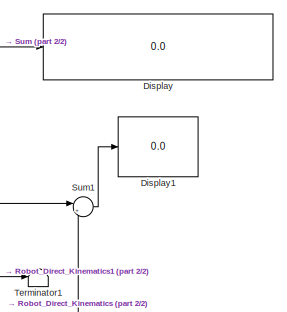
[diagram: root canvas - part 1/2, middle right region]
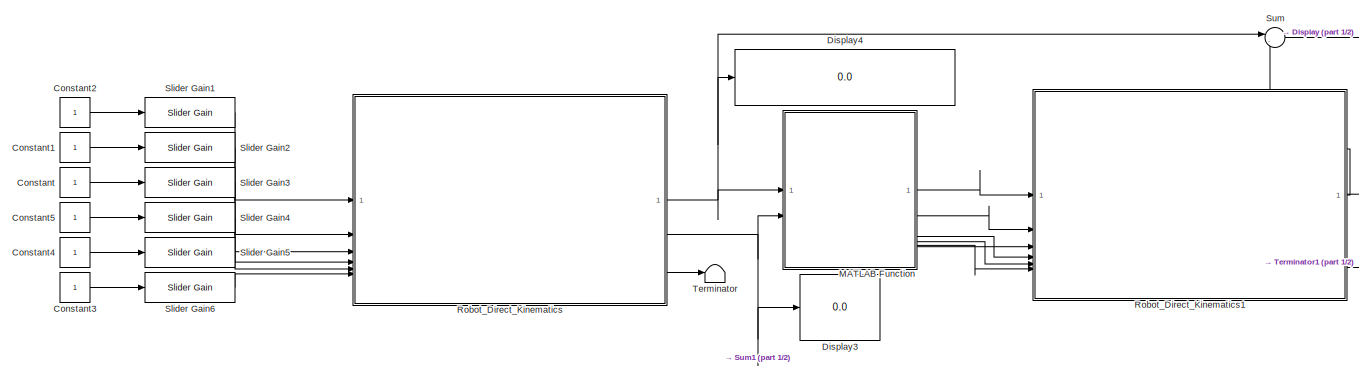
[diagram: root canvas - part 2/2, most of the canvas]
MODEL slx_ac8b60aae7c4
KIND model
CONFIG AbsTol = auto
CONFIG EnableMultiTasking = on
CONFIG FixedStep = auto
CONFIG MaxStep = 1e-6
CONFIG MinStep = auto
CONFIG RelTol = 1e-3
CONFIG SampleTimeConstraint = Unconstrained
CONFIG SolverName = VariableStepAuto
CONFIG StartTime = 0.0
CONFIG StopTime = inf
BLOCK [Constant] Constant
BLOCK [Constant] Constant1
BLOCK [Constant] Constant2
BLOCK [Constant] Constant3
BLOCK [Constant] Constant4
BLOCK [Constant] Constant5
BLOCK [Display] Display
  Decimation = 1
BLOCK [Display] Display1
  Decimation = 1
BLOCK [Display] Display3
  Decimation = 1
BLOCK [Display] Display4
  Decimation = 1
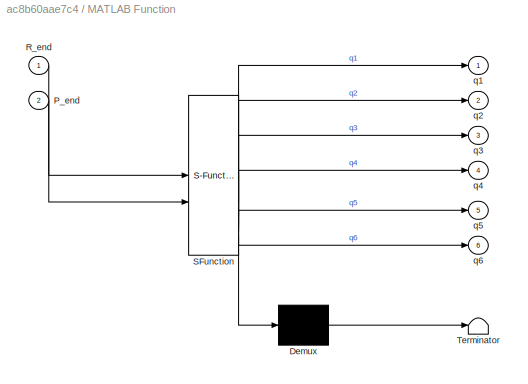
BLOCK [SubSystem] MATLAB Function
  ErrorFcn = Stateflow.Translate.translate
  PermitHierarchicalResolution = ExplicitOnly
  SFBlockType = MATLAB Function
  TreatAsAtomicUnit = on
BLOCK [Demux] MATLAB Function/ Demux 
  Outputs = 1
BLOCK [S-Function] MATLAB Function/ SFunction 
  EnableBusSupport = on
  FunctionName = sf_sfun
  PortCounts = [2 7]
  SFcnIsStateOwnerBlock = off
  SFunctionDeploymentMode = off
  Tag = Stateflow S-Function 1
BLOCK [Terminator] MATLAB Function/ Terminator 
BLOCK [Inport] MATLAB Function/P_end
  Port = 2
BLOCK [Inport] MATLAB Function/R_end
BLOCK [Outport] MATLAB Function/q1
BLOCK [Outport] MATLAB Function/q2
  Port = 2
BLOCK [Outport] MATLAB Function/q3
  Port = 3
BLOCK [Outport] MATLAB Function/q4
  Port = 4
BLOCK [Outport] MATLAB Function/q5
  Port = 5
BLOCK [Outport] MATLAB Function/q6
  Port = 6
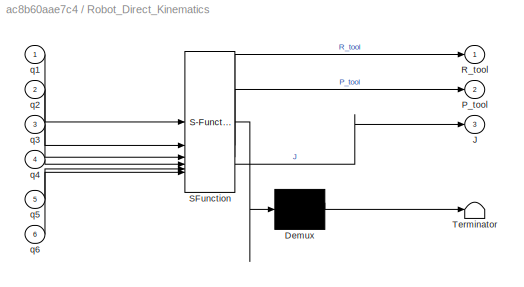
BLOCK [SubSystem] Robot_Direct_Kinematics
  ErrorFcn = Stateflow.Translate.translate
  PermitHierarchicalResolution = ExplicitOnly
  SFBlockType = MATLAB Function
  TreatAsAtomicUnit = on
BLOCK [Demux] Robot_Direct_Kinematics/ Demux 
  Outputs = 1
BLOCK [S-Function] Robot_Direct_Kinematics/ SFunction 
  EnableBusSupport = on
  FunctionName = sf_sfun
  PortCounts = [6 4]
  SFcnIsStateOwnerBlock = off
  SFunctionDeploymentMode = off
  Tag = Stateflow S-Function 2
BLOCK [Terminator] Robot_Direct_Kinematics/ Terminator 
BLOCK [Outport] Robot_Direct_Kinematics/J
  Port = 3
BLOCK [Outport] Robot_Direct_Kinematics/P_tool
  Port = 2
BLOCK [Outport] Robot_Direct_Kinematics/R_tool
BLOCK [Inport] Robot_Direct_Kinematics/q1
BLOCK [Inport] Robot_Direct_Kinematics/q2
  Port = 2
BLOCK [Inport] Robot_Direct_Kinematics/q3
  Port = 3
BLOCK [Inport] Robot_Direct_Kinematics/q4
  Port = 4
BLOCK [Inport] Robot_Direct_Kinematics/q5
  Port = 5
BLOCK [Inport] Robot_Direct_Kinematics/q6
  Port = 6
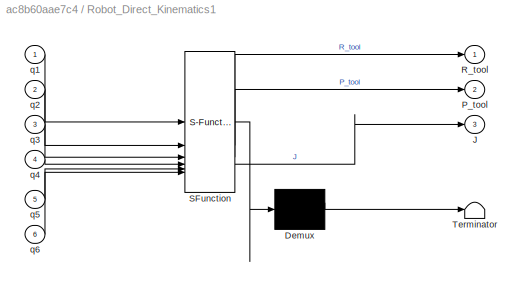
BLOCK [SubSystem] Robot_Direct_Kinematics1
  ErrorFcn = Stateflow.Translate.translate
  PermitHierarchicalResolution = ExplicitOnly
  SFBlockType = MATLAB Function
  TreatAsAtomicUnit = on
BLOCK [Demux] Robot_Direct_Kinematics1/ Demux 
  Outputs = 1
BLOCK [S-Function] Robot_Direct_Kinematics1/ SFunction 
  EnableBusSupport = on
  FunctionName = sf_sfun
  PortCounts = [6 4]
  SFcnIsStateOwnerBlock = off
  SFunctionDeploymentMode = off
  Tag = Stateflow S-Function 3
BLOCK [Terminator] Robot_Direct_Kinematics1/ Terminator 
BLOCK [Outport] Robot_Direct_Kinematics1/J
  Port = 3
BLOCK [Outport] Robot_Direct_Kinematics1/P_tool
  Port = 2
BLOCK [Outport] Robot_Direct_Kinematics1/R_tool
BLOCK [Inport] Robot_Direct_Kinematics1/q1
BLOCK [Inport] Robot_Direct_Kinematics1/q2
  Port = 2
BLOCK [Inport] Robot_Direct_Kinematics1/q3
  Port = 3
BLOCK [Inport] Robot_Direct_Kinematics1/q4
  Port = 4
BLOCK [Inport] Robot_Direct_Kinematics1/q5
  Port = 5
BLOCK [Inport] Robot_Direct_Kinematics1/q6
  Port = 6
BLOCK [Reference] Slider Gain1  REF=simulink/Math
Operations/Slider
Gain
  SourceBlock = simulink/Math\nOperations/Slider\nGain
  SourceType = Slider Gain
BLOCK [Reference] Slider Gain2  REF=simulink/Math
Operations/Slider
Gain
  SourceBlock = simulink/Math\nOperations/Slider\nGain
  SourceType = Slider Gain
BLOCK [Reference] Slider Gain3  REF=simulink/Math
Operations/Slider
Gain
  SourceBlock = simulink/Math\nOperations/Slider\nGain
  SourceType = Slider Gain
BLOCK [Reference] Slider Gain4  REF=simulink/Math
Operations/Slider
Gain
  SourceBlock = simulink/Math\nOperations/Slider\nGain
  SourceType = Slider Gain
BLOCK [Reference] Slider Gain5  REF=simulink/Math
Operations/Slider
Gain
  SourceBlock = simulink/Math\nOperations/Slider\nGain
  SourceType = Slider Gain
BLOCK [Reference] Slider Gain6  REF=simulink/Math
Operations/Slider
Gain
  SourceBlock = simulink/Math\nOperations/Slider\nGain
  SourceType = Slider Gain
BLOCK [Sum] Sum
  Inputs = |-+
BLOCK [Sum] Sum1
  Inputs = |+-
BLOCK [Terminator] Terminator
BLOCK [Terminator] Terminator1
LINE Constant1:1 -> Slider Gain2:1
LINE Constant2:1 -> Slider Gain1:1
LINE Constant3:1 -> Slider Gain6:1
LINE Constant4:1 -> Slider Gain5:1
LINE Constant5:1 -> Slider Gain4:1
LINE Constant:1 -> Slider Gain3:1
LINE MATLAB Function:1 -> Robot_Direct_Kinematics1:1
LINE MATLAB Function:2 -> Robot_Direct_Kinematics1:2
LINE MATLAB Function:3 -> Robot_Direct_Kinematics1:3
LINE MATLAB Function:4 -> Robot_Direct_Kinematics1:4
LINE MATLAB Function:5 -> Robot_Direct_Kinematics1:5
LINE MATLAB Function:6 -> Robot_Direct_Kinematics1:6
LINE Robot_Direct_Kinematics1:1 -> Sum:2
LINE Robot_Direct_Kinematics1:2 -> Sum1:1
LINE Robot_Direct_Kinematics1:3 -> Terminator1:1
NET Robot_Direct_Kinematics:1 -> Display4:1, MATLAB Function:1, Sum:1
NET Robot_Direct_Kinematics:2 -> Display3:1, MATLAB Function:2, Sum1:2
LINE Robot_Direct_Kinematics:3 -> Terminator:1
LINE Slider Gain1:1 -> Robot_Direct_Kinematics:1
LINE Slider Gain2:1 -> Robot_Direct_Kinematics:2
LINE Slider Gain3:1 -> Robot_Direct_Kinematics:3
LINE Slider Gain4:1 -> Robot_Direct_Kinematics:4
LINE Slider Gain5:1 -> Robot_Direct_Kinematics:5
LINE Slider Gain6:1 -> Robot_Direct_Kinematics:6
LINE Sum1:1 -> Display1:1
LINE Sum:1 -> Display:1
note: NET lines group one-source signal fan-out (src -> all destinations, sorted); 1:1 wires keep LINE
CHART MATLAB Function states=1 transitions=1
  STATE_LABEL 'eML_blk_kernel()'
  STATE_LABEL 'SCRIPT:\nfunction [q1, q2, q3, q4, q5, q6] = IKBlock(R_end, P_end)\n\n    d1 = 0; a1 = 0;\n    d2 = 0; a2 = 0;\n    d3 = -0.4; a3 = 0;\n    d4 = 0; a4 = 0.1;\n    d5 = 0.5; a5 = 0;\n    d6 = -0.1;\n    d7 = 0.15;\n    gamma = pi/8;\n\n    Pw = P_end - d7 * R_end(:,3);\n\n    q1 = atan2(Pw(2), Pw(1));\n\n    x = sqrt(Pw(1)^2 + Pw(2)^2);\n    z = Pw(3);\n\n    r = sqrt((x - a4)^2 + (z - d3)^2);\n\n    theta2 = atan2(z -...<+1161ch>'
CHART Robot_Direct_Kinematics states=1 transitions=1
  STATE_LABEL 'eML_blk_kernel()'
  STATE_LABEL 'SCRIPT:\nfunction [R_tool,P_tool,J] = Robot_Direct_Kinematics(q1,q2,q3,q4,q5,q6)\n%#codegen\n\n%    This function was generated by the Symbolic Math Toolbox version 24.2.\n%    24-May-2025 22:37:09\n\n% q1 = complex(q1);  % if required to enforce complex operations\n% q2 = complex(q2);  % if required to enforce complex operations\n% q3 = complex(q3);  % if required to enforce complex operations\n% q4 = comp...<+3608ch>'
CHART Robot_Direct_Kinematics1 states=1 transitions=1
  STATE_LABEL 'eML_blk_kernel()'
  STATE_LABEL 'SCRIPT:\nfunction [R_tool,P_tool,J] = Robot_Direct_Kinematics(q1,q2,q3,q4,q5,q6)\n%#codegen\n\n%    This function was generated by the Symbolic Math Toolbox version 24.2.\n%    24-May-2025 22:37:09\n\n% q1 = complex(q1);  % if required to enforce complex operations\n% q2 = complex(q2);  % if required to enforce complex operations\n% q3 = complex(q3);  % if required to enforce complex operations\n% q4 = comp...<+3608ch>'
CHART  states=0 transitions=0
CHART  states=0 transitions=0
CHART  states=0 transitions=0
